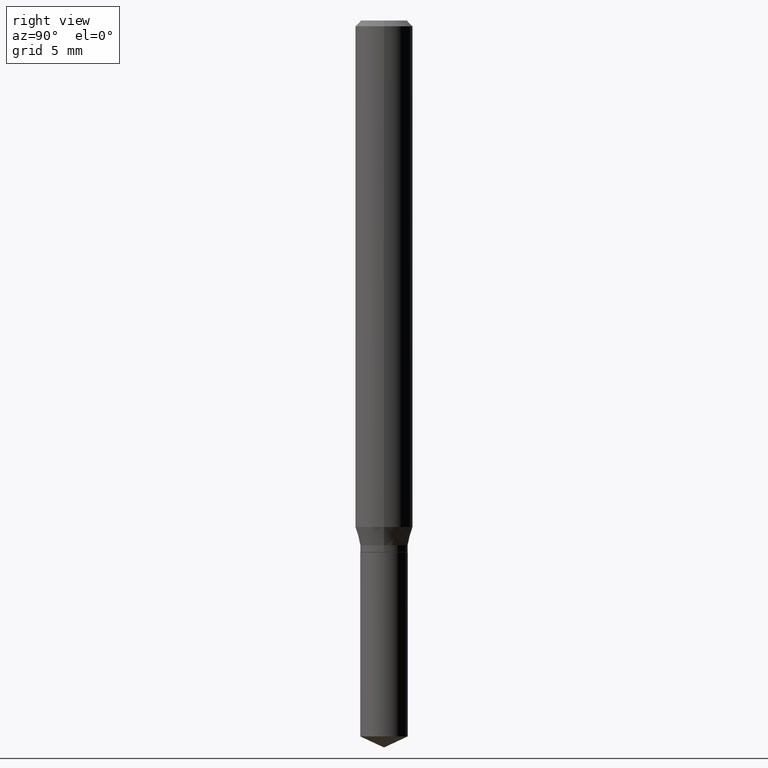
[diagram: clean part render]
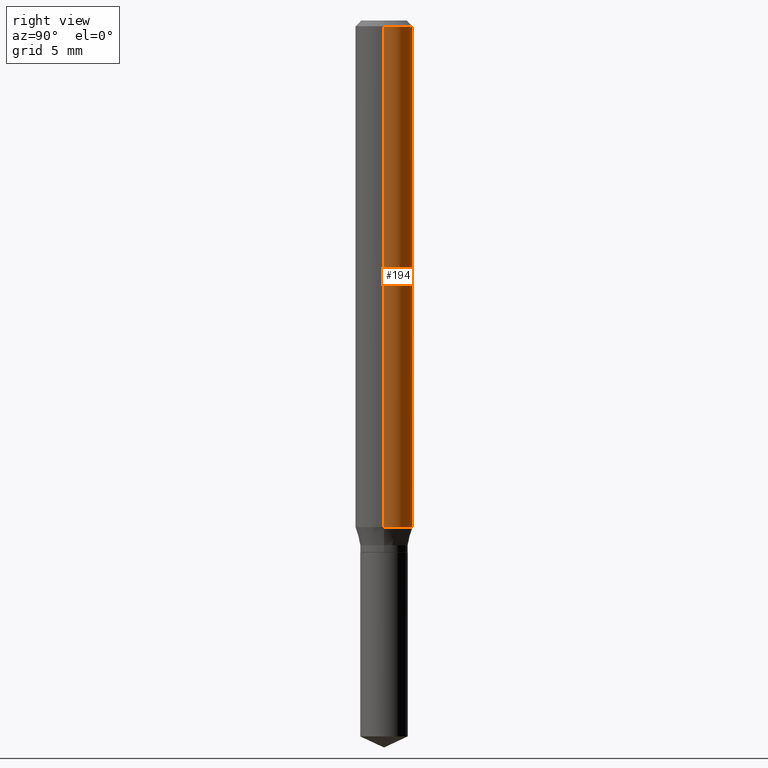
[diagram: same view with one face highlighted and labeled with its STEP entity id]
A machine part, right view. The second image highlights one B-rep face of the part: STEP entity #194.
In plain terms, the highlighted cylindrical surface (edge-blend (fillet) strip) has radius 1.4999 mm, axis along (-0, 0, 1).
Its self-contained STEP definition (entity closure, byte-faithful):
#17 = DIRECTION ( 'NONE',  ( -2.445468806185136877E-29, 3.491481338843145188E-15, 1.000000000000000000 ) ) ;
#29 = DIRECTION ( 'NONE',  ( -2.445468806185136597E-29, 3.491481338843145583E-15, 1.000000000000000000 ) ) ;
#34 = DIRECTION ( 'NONE',  ( -2.445468806185136597E-29, 3.491481338843145583E-15, 1.000000000000000000 ) ) ;
#48 = EDGE_CURVE ( 'NONE', #342, #180, #489, .T. ) ;
#64 = CARTESIAN_POINT ( 'NONE',  ( 0.05904999999999999832, -4.535783407291118600E-16, -0.01181000000000007565 ) ) ;
#95 = CARTESIAN_POINT ( 'NONE',  ( -0.05905000000000006771, 4.195754854663396409E-16, -2.904631170795525045E-30 ) ) ;
#103 = CARTESIAN_POINT ( 'NONE',  ( -0.05905000000000013016, -3.219570687426562421E-15, -1.042292889383932275 ) ) ;
#108 = VERTEX_POINT ( 'NONE', #177 ) ;
#114 = CARTESIAN_POINT ( 'NONE',  ( 0.000000000000000000, 0.000000000000000000, 0.000000000000000000 ) ) ;
#125 = VERTEX_POINT ( 'NONE', #103 ) ;
#144 = EDGE_CURVE ( 'NONE', #125, #180, #427, .T. ) ;
#146 = CARTESIAN_POINT ( 'NONE',  ( 2.548894747896981687E-29, -3.639146172892902703E-15, -1.042292889383932275 ) ) ;
#154 = ORIENTED_EDGE ( 'NONE', *, *, #302, .F. ) ;
#162 = CARTESIAN_POINT ( 'NONE',  ( 0.05905000000000006771, -4.123439461173745257E-16, 2.879382386107503723E-30 ) ) ;
#165 = ORIENTED_EDGE ( 'NONE', *, *, #48, .F. ) ;
#177 = CARTESIAN_POINT ( 'NONE',  ( 0.05905000000000013016, -4.051490119010276834E-15, -1.042292889383932275 ) ) ;
#180 = VERTEX_POINT ( 'NONE', #471 ) ;
#194 = ADVANCED_FACE ( 'NONE', ( #444 ), #363, .T. ) ;
#225 = EDGE_CURVE ( 'NONE', #108, #125, #352, .T. ) ;
#239 = VECTOR ( 'NONE', #449, 39.37007874015748143 ) ;
#267 = EDGE_LOOP ( 'NONE', ( #402, #409, #165, #154 ) ) ;
#300 = DIRECTION ( 'NONE',  ( 1.000000000000000000, -6.982962677686266711E-15, 0.000000000000000000 ) ) ;
#302 = EDGE_CURVE ( 'NONE', #108, #342, #378, .T. ) ;
#303 = DIRECTION ( 'NONE',  ( 1.000000000000000000, -6.982962677686265133E-15, 0.000000000000000000 ) ) ;
#309 = AXIS2_PLACEMENT_3D ( 'NONE', #114, #34, #396 ) ;
#328 = CARTESIAN_POINT ( 'NONE',  ( 2.888098660104664642E-31, -4.123439461173780879E-17, -0.01181000000000007565 ) ) ;
#342 = VERTEX_POINT ( 'NONE', #64 ) ;
#352 = CIRCLE ( 'NONE', #481, 0.05905000000000013016 ) ;
#363 = CYLINDRICAL_SURFACE ( 'NONE', #309, 0.05905000000000006771 ) ;
#375 = AXIS2_PLACEMENT_3D ( 'NONE', #328, #477, #300 ) ;
#378 = LINE ( 'NONE', #162, #239 ) ;
#396 = DIRECTION ( 'NONE',  ( 1.000000000000000000, -6.982962677686266711E-15, 4.876176775795936353E-29 ) ) ;
#402 = ORIENTED_EDGE ( 'NONE', *, *, #225, .T. ) ;
#409 = ORIENTED_EDGE ( 'NONE', *, *, #144, .T. ) ;
#427 = LINE ( 'NONE', #95, #465 ) ;
#444 = FACE_OUTER_BOUND ( 'NONE', #267, .T. ) ;
#449 = DIRECTION ( 'NONE',  ( -2.445468806185136877E-29, 3.491481338843145188E-15, 1.000000000000000000 ) ) ;
#465 = VECTOR ( 'NONE', #17, 39.37007874015748143 ) ;
#471 = CARTESIAN_POINT ( 'NONE',  ( -0.05904999999999999832, -1.420614798285979737E-15, -0.01181000000000007565 ) ) ;
#477 = DIRECTION ( 'NONE',  ( -2.445468806185136597E-29, 3.491481338843145583E-15, 1.000000000000000000 ) ) ;
#481 = AXIS2_PLACEMENT_3D ( 'NONE', #146, #29, #303 ) ;
#489 = CIRCLE ( 'NONE', #375, 0.05904999999999999832 ) ;